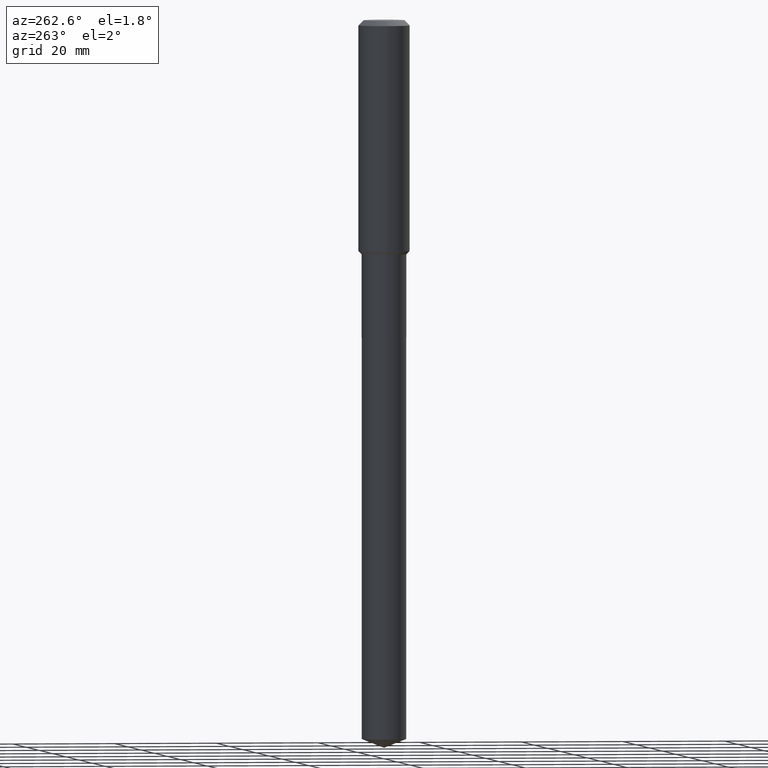
[diagram: clean part render]
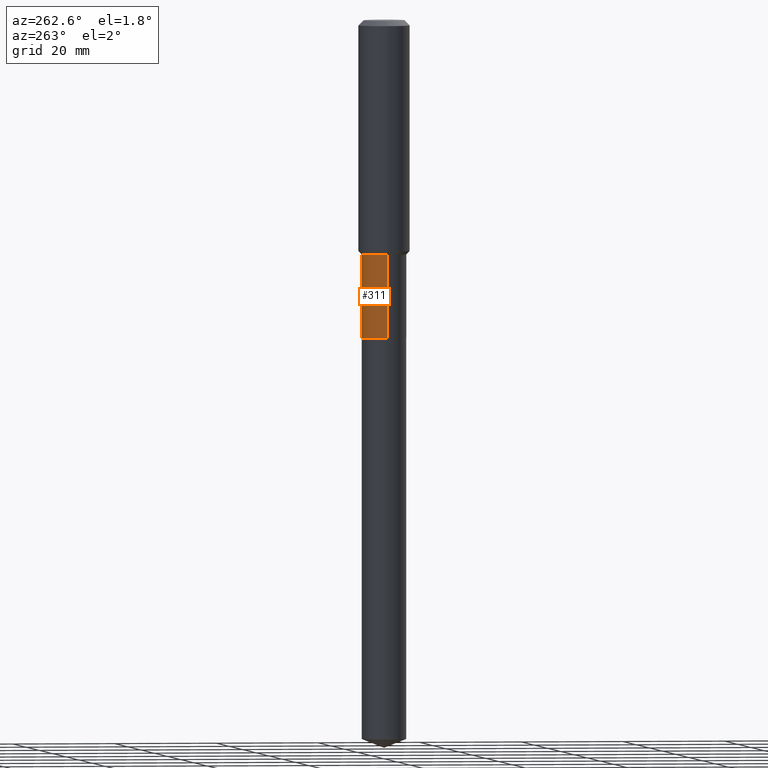
[diagram: same view with one face highlighted and labeled with its STEP entity id]
A machine part, auxiliary view. The second image highlights one B-rep face of the part: STEP entity #311.
In plain terms, the highlighted cylindrical surface (edge-blend (fillet) strip) has radius 4.3663 mm, axis along (-0, 0, 1).
Its self-contained STEP definition (entity closure, byte-faithful):
#3 = DIRECTION ( 'NONE',  ( -2.445468806185136597E-29, 3.491481338843145583E-15, 1.000000000000000000 ) ) ;
#5 = DIRECTION ( 'NONE',  ( -2.445468806185136597E-29, 3.491481338843145583E-15, 1.000000000000000000 ) ) ;
#17 = DIRECTION ( 'NONE',  ( -2.445468806185136877E-29, 3.491481338843145188E-15, 1.000000000000000000 ) ) ;
#38 = EDGE_CURVE ( 'NONE', #162, #396, #47, .T. ) ;
#47 = LINE ( 'NONE', #385, #342 ) ;
#54 = CARTESIAN_POINT ( 'NONE',  ( 5.967922074614205116E-29, -8.520611059312809095E-15, -2.440399999999999014 ) ) ;
#57 = DIRECTION ( 'NONE',  ( -2.445468806185136877E-29, 3.491481338843145188E-15, 1.000000000000000000 ) ) ;
#82 = EDGE_CURVE ( 'NONE', #162, #437, #194, .T. ) ;
#85 = ORIENTED_EDGE ( 'NONE', *, *, #38, .F. ) ;
#91 = FACE_OUTER_BOUND ( 'NONE', #377, .T. ) ;
#104 = VECTOR ( 'NONE', #57, 39.37007874015748143 ) ;
#122 = EDGE_CURVE ( 'NONE', #437, #442, #286, .T. ) ;
#145 = AXIS2_PLACEMENT_3D ( 'NONE', #164, #310, #449 ) ;
#153 = CIRCLE ( 'NONE', #145, 0.1718999999999999140 ) ;
#162 = VERTEX_POINT ( 'NONE', #432 ) ;
#164 = CARTESIAN_POINT ( 'NONE',  ( 4.398664741685204254E-29, -6.280127484177163852E-15, -1.798699999999999521 ) ) ;
#166 = DIRECTION ( 'NONE',  ( 1.000000000000000000, -6.982962677686269077E-15, 0.000000000000000000 ) ) ;
#191 = CARTESIAN_POINT ( 'NONE',  ( 0.1718999999999999140, -7.480498768471432304E-15, -1.798699999999999521 ) ) ;
#194 = CIRCLE ( 'NONE', #256, 0.1718999999999999417 ) ;
#202 = DIRECTION ( 'NONE',  ( 1.000000000000000000, -6.982962677686266711E-15, 4.876176775795936353E-29 ) ) ;
#215 = CYLINDRICAL_SURFACE ( 'NONE', #287, 0.1718999999999999417 ) ;
#221 = ORIENTED_EDGE ( 'NONE', *, *, #122, .T. ) ;
#241 = ORIENTED_EDGE ( 'NONE', *, *, #82, .T. ) ;
#253 = EDGE_CURVE ( 'NONE', #396, #442, #153, .T. ) ;
#256 = AXIS2_PLACEMENT_3D ( 'NONE', #54, #3, #166 ) ;
#286 = LINE ( 'NONE', #325, #104 ) ;
#287 = AXIS2_PLACEMENT_3D ( 'NONE', #351, #5, #202 ) ;
#310 = DIRECTION ( 'NONE',  ( -2.445468806185136597E-29, 3.491481338843145583E-15, 1.000000000000000000 ) ) ;
#311 = ADVANCED_FACE ( 'NONE', ( #91 ), #215, .T. ) ;
#325 = CARTESIAN_POINT ( 'NONE',  ( -0.1718999999999999417, 1.221422962771611806E-15, -8.455649420148180377E-30 ) ) ;
#342 = VECTOR ( 'NONE', #17, 39.37007874015748143 ) ;
#351 = CARTESIAN_POINT ( 'NONE',  ( 0.000000000000000000, 0.000000000000000000, 0.000000000000000000 ) ) ;
#377 = EDGE_LOOP ( 'NONE', ( #241, #221, #379, #85 ) ) ;
#379 = ORIENTED_EDGE ( 'NONE', *, *, #253, .F. ) ;
#385 = CARTESIAN_POINT ( 'NONE',  ( 0.1718999999999999417, -1.200371284294268847E-15, 8.382147877593211677E-30 ) ) ;
#396 = VERTEX_POINT ( 'NONE', #191 ) ;
#399 = CARTESIAN_POINT ( 'NONE',  ( -0.1718999999999999140, -6.178946308973374668E-15, -1.798699999999999521 ) ) ;
#432 = CARTESIAN_POINT ( 'NONE',  ( 0.1718999999999999417, -9.720982343607079126E-15, -2.440399999999999014 ) ) ;
#437 = VERTEX_POINT ( 'NONE', #484 ) ;
#442 = VERTEX_POINT ( 'NONE', #399 ) ;
#449 = DIRECTION ( 'NONE',  ( 1.000000000000000000, -6.982962677686264344E-15, 0.000000000000000000 ) ) ;
#484 = CARTESIAN_POINT ( 'NONE',  ( -0.1718999999999999417, -6.178946308973374668E-15, -2.440399999999999014 ) ) ;